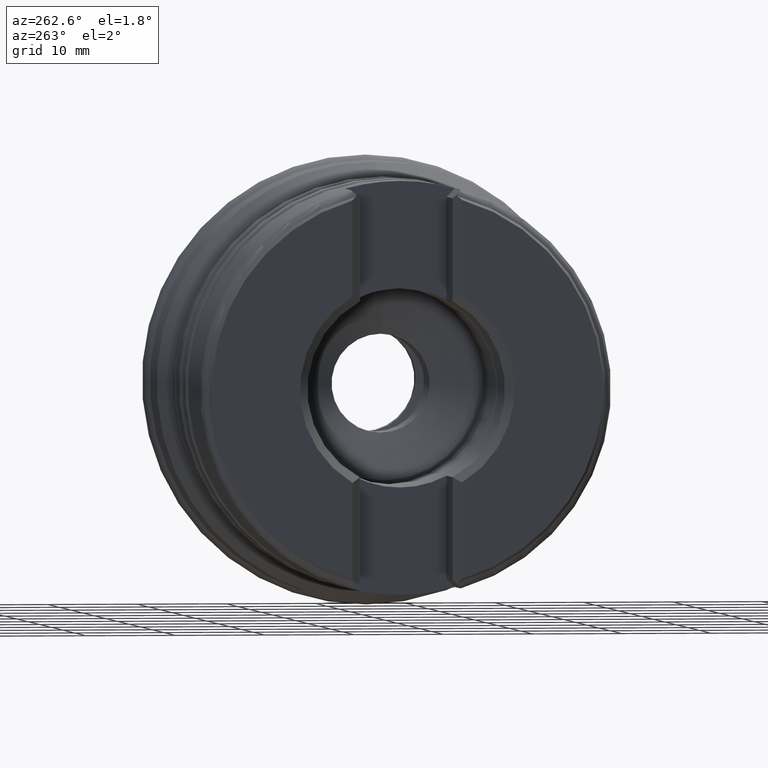
[diagram: clean part render]
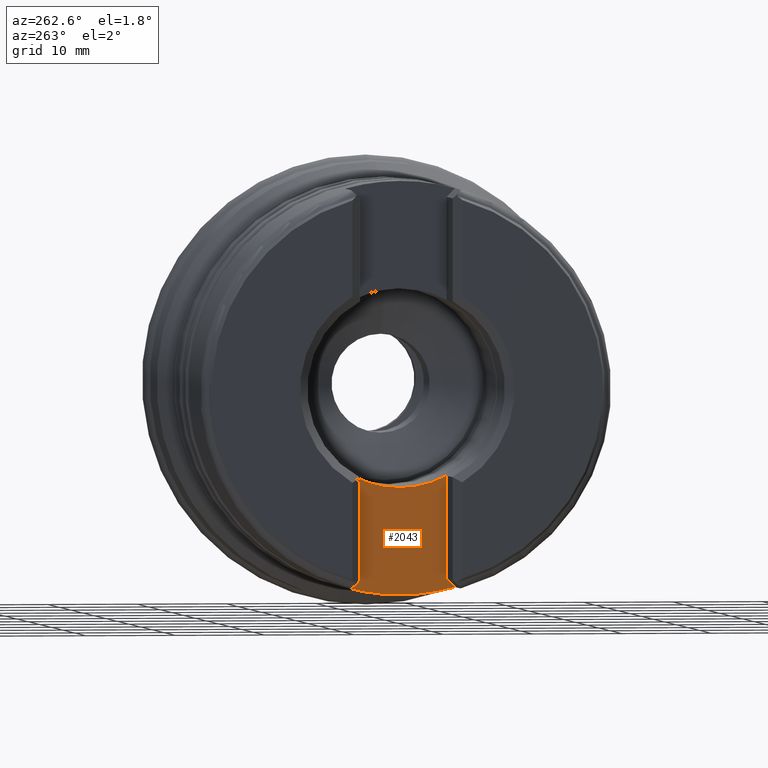
[diagram: same view with one face highlighted and labeled with its STEP entity id]
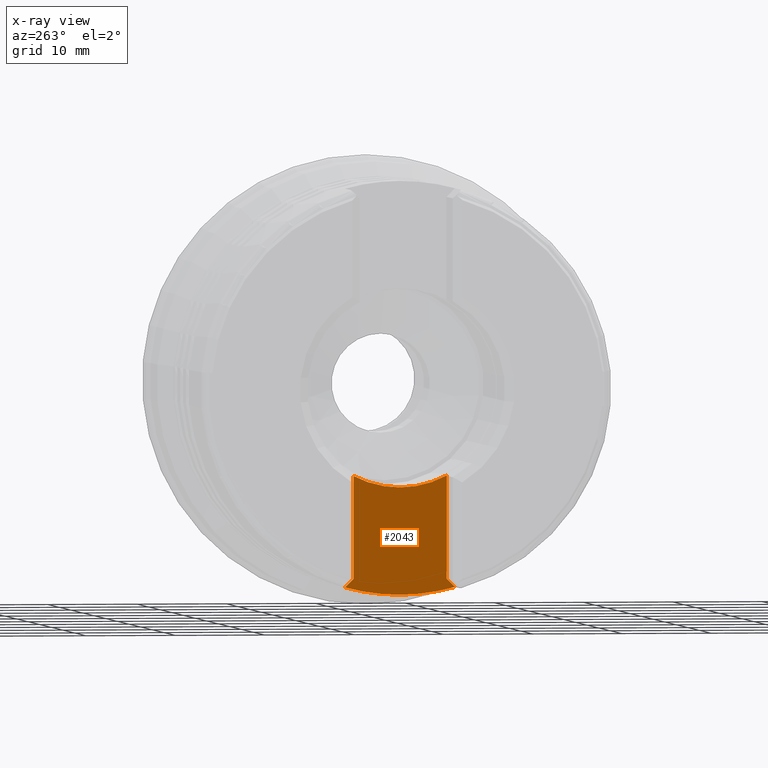
[diagram: x-ray of the same camera — body ghosted, the highlighted face saturated]
A machine part, auxiliary view. The second image highlights one B-rep face of the part: STEP entity #2043.
The next image is the same camera in x-ray: the body ghosted, the highlighted face saturated — about 0% of this face is hidden behind the body in this view.
In plain terms, the highlighted planar face has unit normal (1, 0, 0).
Its self-contained STEP definition (entity closure, byte-faithful):
#1 = EDGE_CURVE ( 'NONE', #2542, #1863, #1103, .T. ) ;
#2 = EDGE_CURVE ( 'NONE', #410, #2541, #1590, .T. ) ;
#19 = EDGE_CURVE ( 'NONE', #411, #374, #1660, .T. ) ;
#20 = EDGE_CURVE ( 'NONE', #1863, #1864, #1372, .T. ) ;
#24 = EDGE_CURVE ( 'NONE', #2541, #1864, #1532, .T. ) ;
#58 = AXIS2_PLACEMENT_3D ( 'NONE', #2549, #1888, #1855 ) ;
#76 = EDGE_CURVE ( 'NONE', #374, #410, #1374, .T. ) ;
#98 = AXIS2_PLACEMENT_3D ( 'NONE', #1932, #1868, #1915 ) ;
#99 = AXIS2_PLACEMENT_3D ( 'NONE', #1947, #1916, #1817 ) ;
#122 = AXIS2_PLACEMENT_3D ( 'NONE', #1806, #1880, #1818 ) ;
#286 = AXIS2_PLACEMENT_3D ( 'NONE', #705, #711, #712 ) ;
#374 = VERTEX_POINT ( 'NONE', #517 ) ;
#397 = VERTEX_POINT ( 'NONE', #653 ) ;
#410 = VERTEX_POINT ( 'NONE', #489 ) ;
#411 = VERTEX_POINT ( 'NONE', #444 ) ;
#444 = CARTESIAN_POINT ( 'NONE',  ( -32.64999999999999900, 6.156428778033642000, -22.16073971466203200 ) ) ;
#489 = CARTESIAN_POINT ( 'NONE',  ( -32.64999999999999900, -6.156428778033647300, -22.16073971466202900 ) ) ;
#517 = CARTESIAN_POINT ( 'NONE',  ( -32.64999999999999900, 0.0000000000000000000, -22.99999999999999600 ) ) ;
#544 = CARTESIAN_POINT ( 'NONE',  ( -32.64999999999999900, -5.200000000000002000, -9.778324242936520200 ) ) ;
#603 = CARTESIAN_POINT ( 'NONE',  ( -32.64999999999999900, 5.199999999999994000, -35.00000000000000000 ) ) ;
#610 = DIRECTION ( 'NONE',  ( -0.0000000000000000000, -0.0000000000000000000, 1.000000000000000000 ) ) ;
#634 = CARTESIAN_POINT ( 'NONE',  ( -32.64999999999999900, 12.09671194195634300, -28.08718699729197600 ) ) ;
#643 = DIRECTION ( 'NONE',  ( -0.0000000000000000000, 0.7079307432236488000, -0.7062818579000966800 ) ) ;
#653 = CARTESIAN_POINT ( 'NONE',  ( -32.64999999999999900, 5.199999999999994000, -21.20653861410985600 ) ) ;
#701 = PLANE ( 'NONE',  #286 ) ;
#705 = CARTESIAN_POINT ( 'NONE',  ( -32.64999999999999900, 5.199999999999994000, -35.00000000000000000 ) ) ;
#711 = DIRECTION ( 'NONE',  ( 1.000000000000000000, 0.0000000000000000000, 0.0000000000000000000 ) ) ;
#712 = DIRECTION ( 'NONE',  ( 0.0000000000000000000, 0.0000000000000000000, -1.000000000000000000 ) ) ;
#746 = CARTESIAN_POINT ( 'NONE',  ( -32.64999999999999900, 0.0000000000000000000, -11.07499999999999800 ) ) ;
#1003 = CARTESIAN_POINT ( 'NONE',  ( -32.64999999999999900, -5.200000000000002000, -21.20653861410987100 ) ) ;
#1004 = CARTESIAN_POINT ( 'NONE',  ( -32.64999999999999900, 5.199999999999994000, -9.778324242936518500 ) ) ;
#1103 = CIRCLE ( 'NONE', #58, 11.07499999999999800 ) ;
#1372 = CIRCLE ( 'NONE', #99, 11.07499999999999800 ) ;
#1374 = CIRCLE ( 'NONE', #122, 22.99999999999999600 ) ;
#1387 = VECTOR ( 'NONE', #1809, 1000.000000000000100 ) ;
#1408 = ORIENTED_EDGE ( 'NONE', *, *, #2, .T. ) ;
#1437 = ORIENTED_EDGE ( 'NONE', *, *, #2024, .T. ) ;
#1496 = VECTOR ( 'NONE', #1830, 1000.000000000000000 ) ;
#1514 = EDGE_LOOP ( 'NONE', ( #1714, #1624, #1408, #1694, #1567, #1735, #1651, #1437 ) ) ;
#1532 = LINE ( 'NONE', #1781, #1496 ) ;
#1567 = ORIENTED_EDGE ( 'NONE', *, *, #20, .F. ) ;
#1590 = LINE ( 'NONE', #2553, #1387 ) ;
#1624 = ORIENTED_EDGE ( 'NONE', *, *, #76, .T. ) ;
#1651 = ORIENTED_EDGE ( 'NONE', *, *, #2011, .F. ) ;
#1660 = CIRCLE ( 'NONE', #98, 22.99999999999999600 ) ;
#1694 = ORIENTED_EDGE ( 'NONE', *, *, #24, .T. ) ;
#1714 = ORIENTED_EDGE ( 'NONE', *, *, #19, .T. ) ;
#1735 = ORIENTED_EDGE ( 'NONE', *, *, #1, .F. ) ;
#1781 = CARTESIAN_POINT ( 'NONE',  ( -32.64999999999999900, -5.200000000000002000, -35.00000000000000000 ) ) ;
#1806 = CARTESIAN_POINT ( 'NONE',  ( -32.64999999999999900, 0.0000000000000000000, 0.0000000000000000000 ) ) ;
#1809 = DIRECTION ( 'NONE',  ( 0.0000000000000000000, 0.7079307432236532400, 0.7062818579000921200 ) ) ;
#1817 = DIRECTION ( 'NONE',  ( 0.0000000000000000000, 0.0000000000000000000, -1.000000000000000000 ) ) ;
#1818 = DIRECTION ( 'NONE',  ( 0.0000000000000000000, 0.0000000000000000000, -1.000000000000000000 ) ) ;
#1830 = DIRECTION ( 'NONE',  ( -0.0000000000000000000, -0.0000000000000000000, 1.000000000000000000 ) ) ;
#1855 = DIRECTION ( 'NONE',  ( 0.0000000000000000000, 0.0000000000000000000, -1.000000000000000000 ) ) ;
#1863 = VERTEX_POINT ( 'NONE', #746 ) ;
#1864 = VERTEX_POINT ( 'NONE', #544 ) ;
#1868 = DIRECTION ( 'NONE',  ( -1.000000000000000000, -0.0000000000000000000, -0.0000000000000000000 ) ) ;
#1880 = DIRECTION ( 'NONE',  ( -1.000000000000000000, -0.0000000000000000000, -0.0000000000000000000 ) ) ;
#1888 = DIRECTION ( 'NONE',  ( -1.000000000000000000, -0.0000000000000000000, -0.0000000000000000000 ) ) ;
#1915 = DIRECTION ( 'NONE',  ( 0.0000000000000000000, -1.065814103640150300E-014, -1.000000000000000000 ) ) ;
#1916 = DIRECTION ( 'NONE',  ( -1.000000000000000000, -0.0000000000000000000, -0.0000000000000000000 ) ) ;
#1932 = CARTESIAN_POINT ( 'NONE',  ( -32.64999999999999900, 0.0000000000000000000, 0.0000000000000000000 ) ) ;
#1947 = CARTESIAN_POINT ( 'NONE',  ( -32.64999999999999900, 0.0000000000000000000, 0.0000000000000000000 ) ) ;
#2011 = EDGE_CURVE ( 'NONE', #397, #2542, #2220, .T. ) ;
#2024 = EDGE_CURVE ( 'NONE', #397, #411, #2137, .T. ) ;
#2043 = ADVANCED_FACE ( 'NONE', ( #2202 ), #701, .F. ) ;
#2133 = VECTOR ( 'NONE', #610, 1000.000000000000000 ) ;
#2137 = LINE ( 'NONE', #634, #2212 ) ;
#2202 = FACE_OUTER_BOUND ( 'NONE', #1514, .T. ) ;
#2212 = VECTOR ( 'NONE', #643, 1000.000000000000100 ) ;
#2220 = LINE ( 'NONE', #603, #2133 ) ;
#2541 = VERTEX_POINT ( 'NONE', #1003 ) ;
#2542 = VERTEX_POINT ( 'NONE', #1004 ) ;
#2549 = CARTESIAN_POINT ( 'NONE',  ( -32.64999999999999900, 0.0000000000000000000, 0.0000000000000000000 ) ) ;
#2553 = CARTESIAN_POINT ( 'NONE',  ( -32.64999999999999900, -6.884586195063927300, -22.88720113517051000 ) ) ;